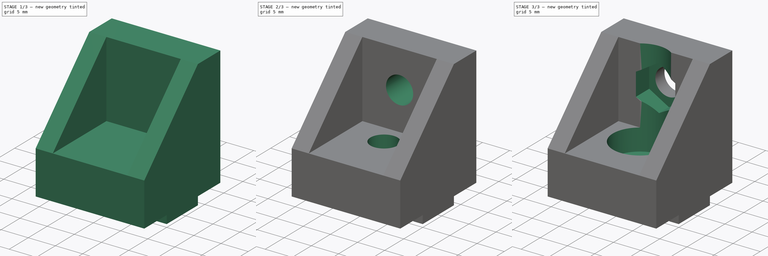
[diagram: build sequence overview — one tinted view per stage of 3, left to right]
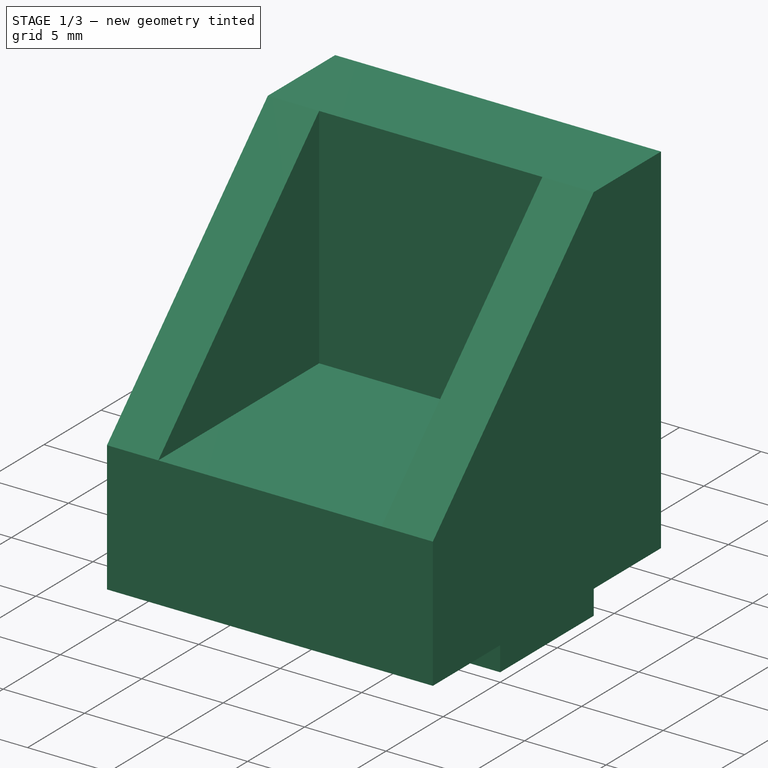
[diagram: stage 1 of 3 — iso view after this stage's code; geometry added in this stage tinted green]
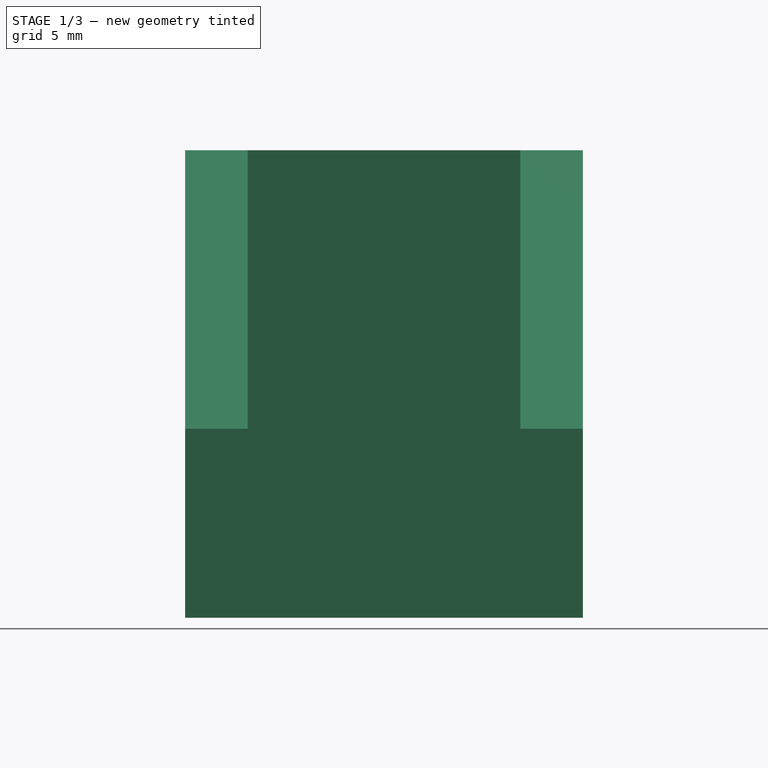
[diagram: stage 1 of 3 — front view after this stage's code; geometry added in this stage tinted green]
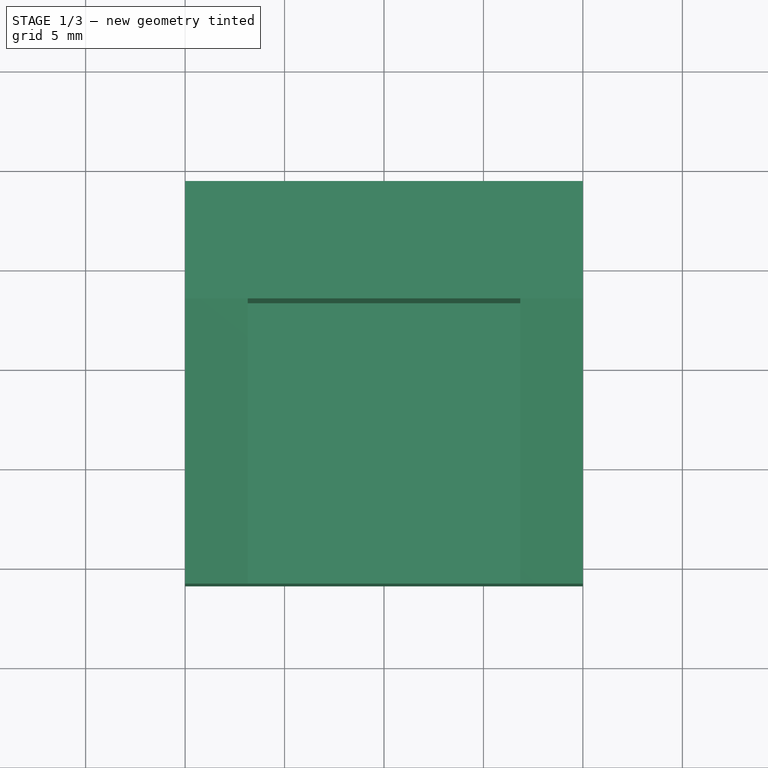
[diagram: stage 1 of 3 — top view after this stage's code; geometry added in this stage tinted green]
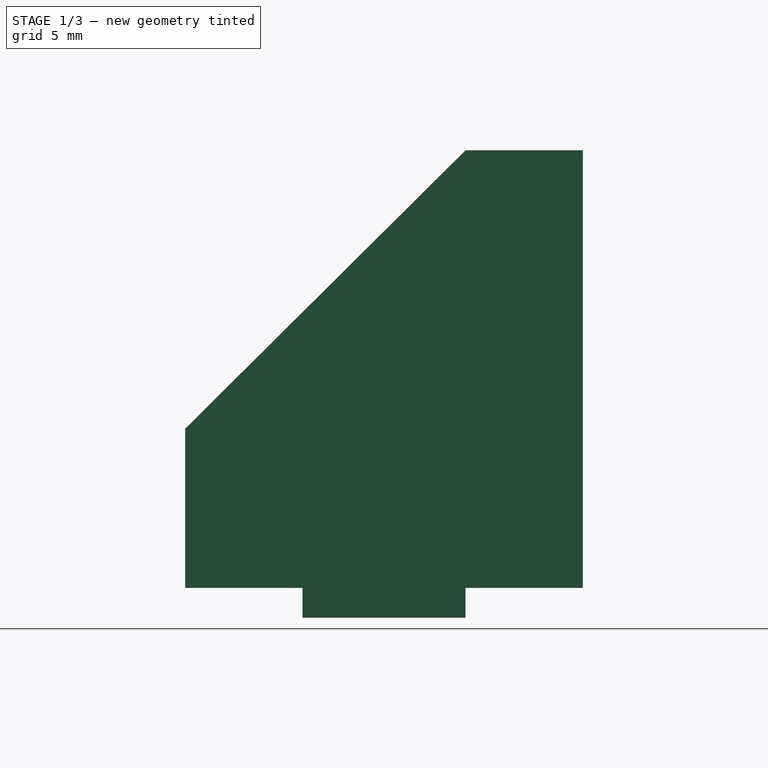
[diagram: stage 1 of 3 — right view after this stage's code; geometry added in this stage tinted green]
FCSTD DOCUMENT  (FreeCAD 0.17R13346 (Git))
Label: BL-Corelia_0_structure_nut_holder
License: All rights reserved
LicenseURL: http://en.wikipedia.org/wiki/All_rights_reserved
objects: Sketcher::SketchObject×7, PartDesign::Pocket×6, PartDesign::Pad×1, PartDesign::Body×1
note: 22 computed .brp shape members not serialized (recipe doc carries the construction recipe); baked Part::Feature solids carry a one-line shape summary decoded from their .brp

FEATURE [Sketcher::SketchObject] Sketch
  MapMode = 5
  Placement = pos=(0,0,0) rot=(0.57735,0.57735,0.57735;2.0944rad)
  Support = -> [YZ_Plane]
  sketch-geometry (9):
    g0: LineSegment StartX=0 StartY=-1.5 StartZ=0 EndX=8.2 EndY=-1.5 EndZ=0
    g1: LineSegment StartX=8.2 StartY=-1.5 StartZ=0 EndX=8.2 EndY=0 EndZ=0
    g2: LineSegment StartX=8.2 StartY=0 StartZ=0 EndX=14.1 EndY=0 EndZ=0
    g3: LineSegment StartX=14.1 StartY=0 StartZ=0 EndX=14.1 EndY=22 EndZ=0
    g4: LineSegment StartX=14.1 StartY=22 StartZ=0 EndX=8.2 EndY=22 EndZ=0
    g5: LineSegment StartX=-5.9 StartY=8 StartZ=0 EndX=-5.9 EndY=0 EndZ=0
    g6: LineSegment StartX=-5.9 StartY=0 StartZ=0 EndX=0 EndY=0 EndZ=0
    g7: LineSegment StartX=0 StartY=0 StartZ=0 EndX=0 EndY=-1.5 EndZ=0
    g8: LineSegment StartX=-5.9 StartY=8 StartZ=0 EndX=8.2 EndY=22 EndZ=0
  constraints (26):
    c: Coincident(g0,g1)
    c: Vertical(g1)
    c: Coincident(g1,g2)
    c: Horizontal(g2)
    c: Coincident(g2,g3)
    c: Vertical(g3)
    c: Coincident(g3,g4)
    c: Horizontal(g4)
    c: Vertical(g5)
    c: Coincident(g6,g5)
    c: Horizontal(g6)
    c: Coincident(g7,g6)
    c: Coincident(g7,g0)
    c: Vertical(g7)
    c: PointOnObject(g6,g2)
    c: Coincident(g8,g5)
    c: Coincident(g8,g4)
    c: Coincident(g6,g-1)
    c: DistanceX(g0,g0) = 8.2
    c: DistanceY(g7,g7) = 1.5
    c: Horizontal(g0)
    c: DistanceX(g6,g6) = 5.9
    c: Equal(g2,g6)
    c: DistanceY(g3,g3) = 22
    c: DistanceY(g5,g5) = 8
    c: Equal(g2,g4)
FEATURE [PartDesign::Pad] Pad
  Length = 20
  Length2 = 100
  Midplane = true
  Placement = pos=(0,0,0) rot=(0.57735,0.57735,0.57735;2.0944rad)
  Profile = -> Sketch
  Type = 0
FEATURE [Sketcher::SketchObject] Sketch001
  MapMode = 5
  Placement = pos=(0,0,22) rot=(0,0,-1;1.5708rad)
  Support = -> [Pad]
  sketch-geometry (4):
    g0: LineSegment StartX=-8.2 StartY=6.85 StartZ=0 EndX=5.9 EndY=6.85 EndZ=0
    g1: LineSegment StartX=5.9 StartY=6.85 StartZ=0 EndX=5.9 EndY=-6.85 EndZ=0
    g2: LineSegment StartX=5.9 StartY=-6.85 StartZ=0 EndX=-8.2 EndY=-6.85 EndZ=0
    g3: LineSegment StartX=-8.2 StartY=-6.85 StartZ=0 EndX=-8.2 EndY=6.85 EndZ=0
  constraints (12):
    c: Coincident(g0,g1)
    c: Coincident(g1,g2)
    c: Coincident(g2,g3)
    c: Coincident(g3,g0)
    c: Horizontal(g0)
    c: Horizontal(g2)
    c: Vertical(g1)
    c: Vertical(g3)
    c: DistanceY(g1,g1) = 13.7
    c: DistanceX(g0) = -8.2
    c: Symmetric(g0,g1,g-1)
    c: DistanceX(g0,g0) = 14.1
FEATURE [PartDesign::Pocket] Pocket
  BaseFeature = -> Pad
  Length = 14
  Length2 = 100
  Placement = pos=(0,0,0) rot=(0.57735,0.57735,0.57735;2.0944rad)
  Profile = -> Sketch001
  Type = 0
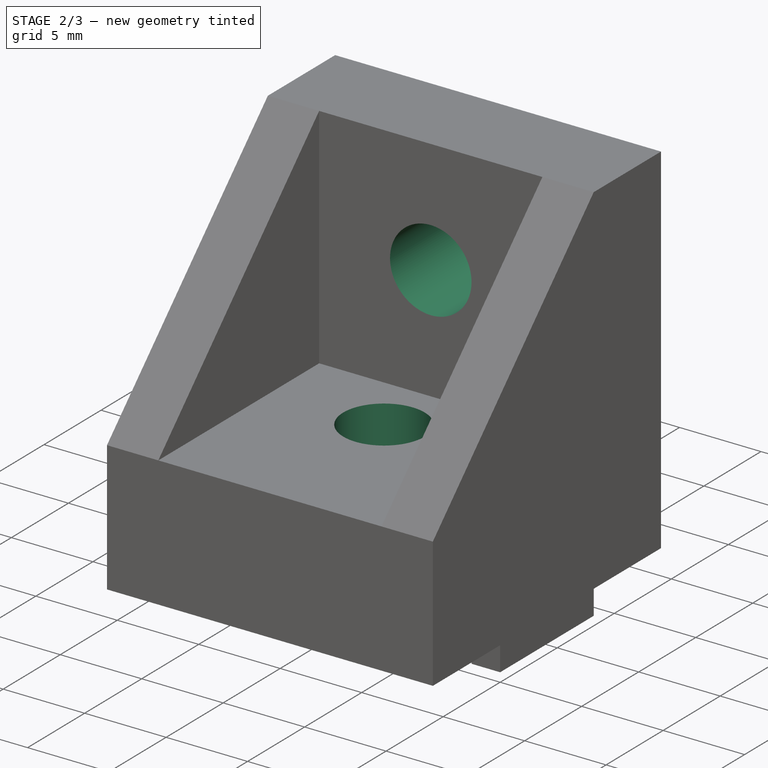
[diagram: stage 2 of 3 — iso view after this stage's code; geometry added in this stage tinted green]
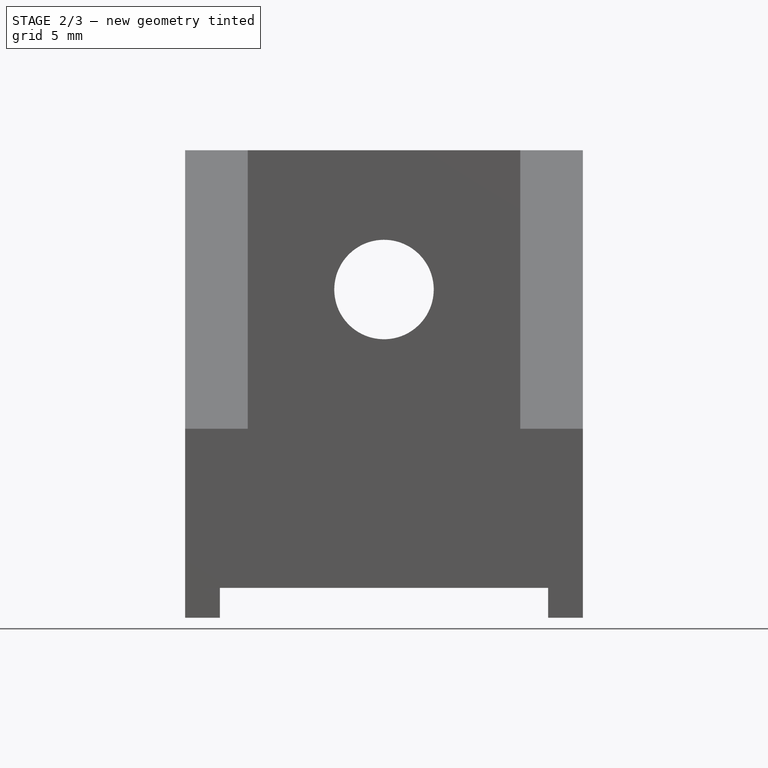
[diagram: stage 2 of 3 — front view after this stage's code; geometry added in this stage tinted green]
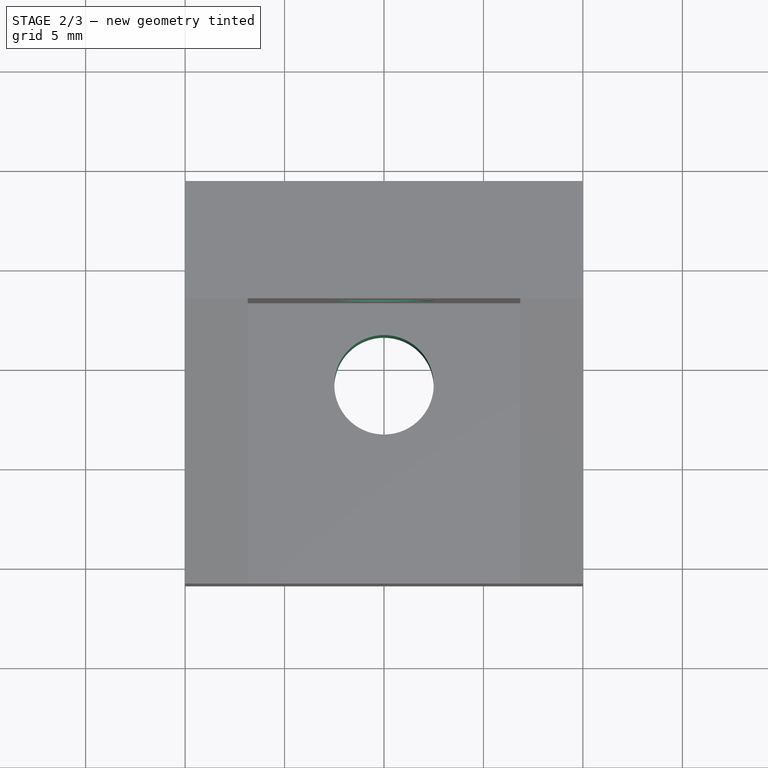
[diagram: stage 2 of 3 — top view after this stage's code; geometry added in this stage tinted green]
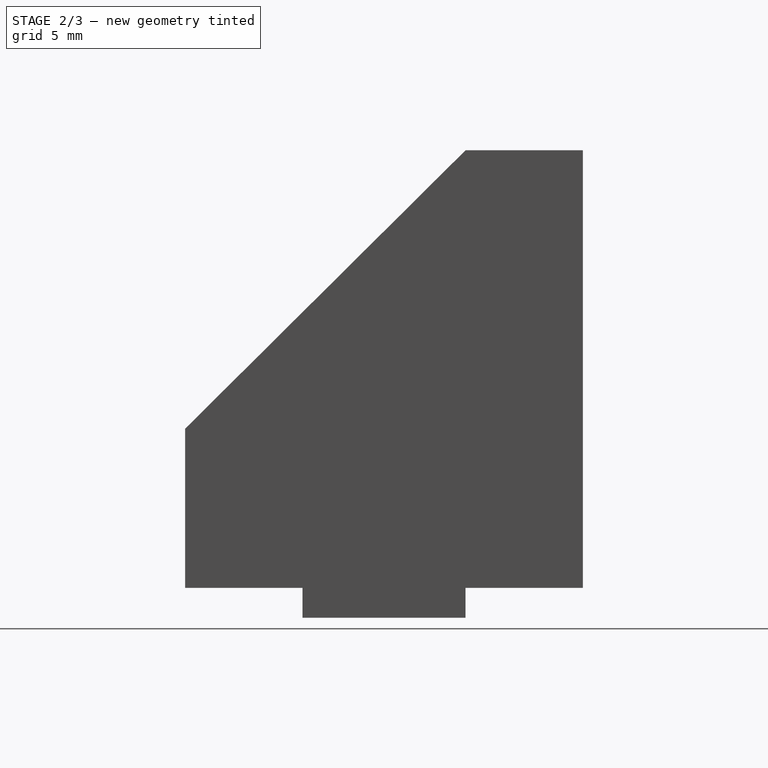
[diagram: stage 2 of 3 — right view after this stage's code; geometry added in this stage tinted green]
FEATURE [Sketcher::SketchObject] Sketch002
  MapMode = 5
  Placement = pos=(0,0,-1.5) rot=(0.707107,0.707107,0;3.14159rad)
  Support = -> [Pocket]
  sketch-geometry (1):
    g0: Circle CenterX=4.1 CenterY=0 CenterZ=0 NormalX=0 NormalY=0 NormalZ=1 AngleXU=0 Radius=2.5
  constraints (3):
    c: PointOnObject(g0,g-1)
    c: DistanceX(g0) = 4.1
    c: Radius(g0) = 2.5
FEATURE [PartDesign::Pocket] Pocket001
  BaseFeature = -> Pocket
  Length = 5
  Length2 = 100
  Placement = pos=(0,0,0) rot=(0.57735,0.57735,0.57735;2.0944rad)
  Profile = -> Sketch002
  Type = 1
FEATURE [Sketcher::SketchObject] Sketch003
  MapMode = 5
  Placement = pos=(0,0,-1.5) rot=(0.707107,0.707107,0;3.14159rad)
  Support = -> [Pocket001]
  sketch-geometry (4):
    g0: LineSegment StartX=0 StartY=8.25 StartZ=0 EndX=8.2 EndY=8.25 EndZ=0
    g1: LineSegment StartX=8.2 StartY=8.25 StartZ=0 EndX=8.2 EndY=-8.25 EndZ=0
    g2: LineSegment StartX=8.2 StartY=-8.25 StartZ=0 EndX=0 EndY=-8.25 EndZ=0
    g3: LineSegment StartX=0 StartY=-8.25 StartZ=0 EndX=0 EndY=8.25 EndZ=0
  constraints (12):
    c: Coincident(g0,g1)
    c: Coincident(g1,g2)
    c: Coincident(g2,g3)
    c: Coincident(g3,g0)
    c: Horizontal(g0)
    c: Horizontal(g2)
    c: Vertical(g1)
    c: Vertical(g3)
    c: PointOnObject(g0,g-2)
    c: Symmetric(g0,g2,g-1)
    c: DistanceX(g0,g0) = 8.2
    c: DistanceY(g3,g3) = 16.5
FEATURE [PartDesign::Pocket] Pocket002
  BaseFeature = -> Pocket001
  Length = 0
  Length2 = 100
  Placement = pos=(0,0,0) rot=(0.57735,0.57735,0.57735;2.0944rad)
  Profile = -> Sketch003
  Type = 3
  UpToFace = -> Pocket001 [Face13]
FEATURE [Sketcher::SketchObject] Sketch004
  MapMode = 5
  Placement = pos=(0,14.1,0) rot=(0.57735,0.57735,0.57735;4.18879rad)
  Support = -> [Pocket002]
  sketch-geometry (1):
    g0: Circle CenterX=15 CenterY=0 CenterZ=0 NormalX=0 NormalY=0 NormalZ=1 AngleXU=0 Radius=2.5
  constraints (3):
    c: PointOnObject(g0,g-1)
    c: DistanceX(g0) = 15
    c: Radius(g0) = 2.5
FEATURE [PartDesign::Pocket] Pocket003
  BaseFeature = -> Pocket002
  Length = 5
  Length2 = 100
  Placement = pos=(0,0,0) rot=(0.57735,0.57735,0.57735;2.0944rad)
  Profile = -> Sketch004
  Type = 1
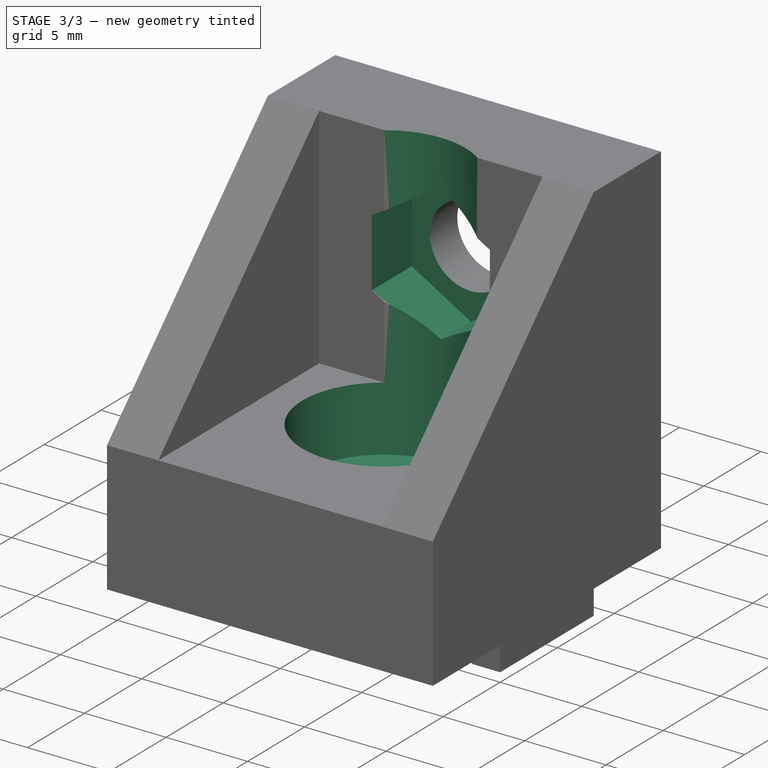
[diagram: stage 3 of 3 — iso view after this stage's code; geometry added in this stage tinted green]
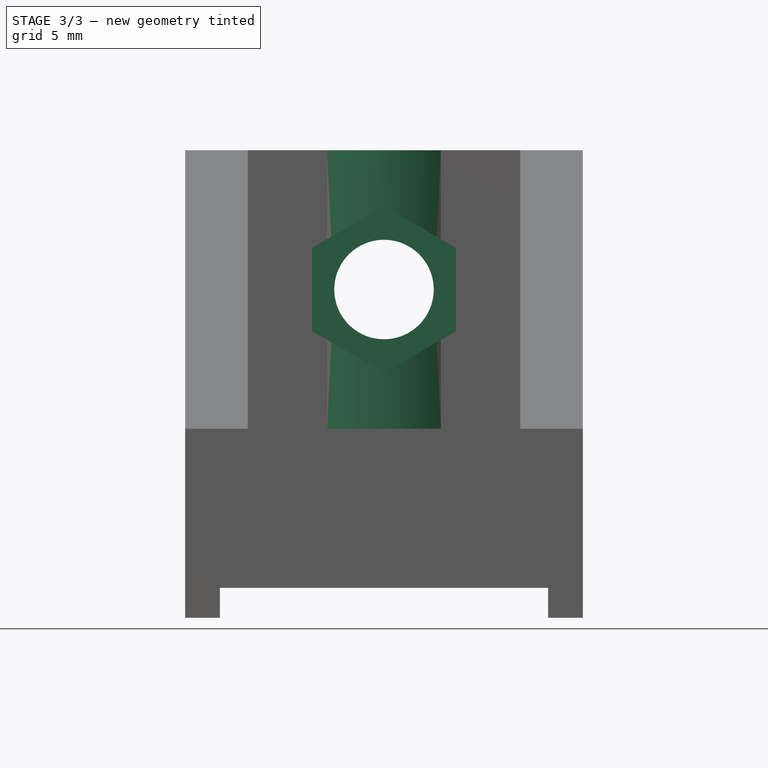
[diagram: stage 3 of 3 — front view after this stage's code; geometry added in this stage tinted green]
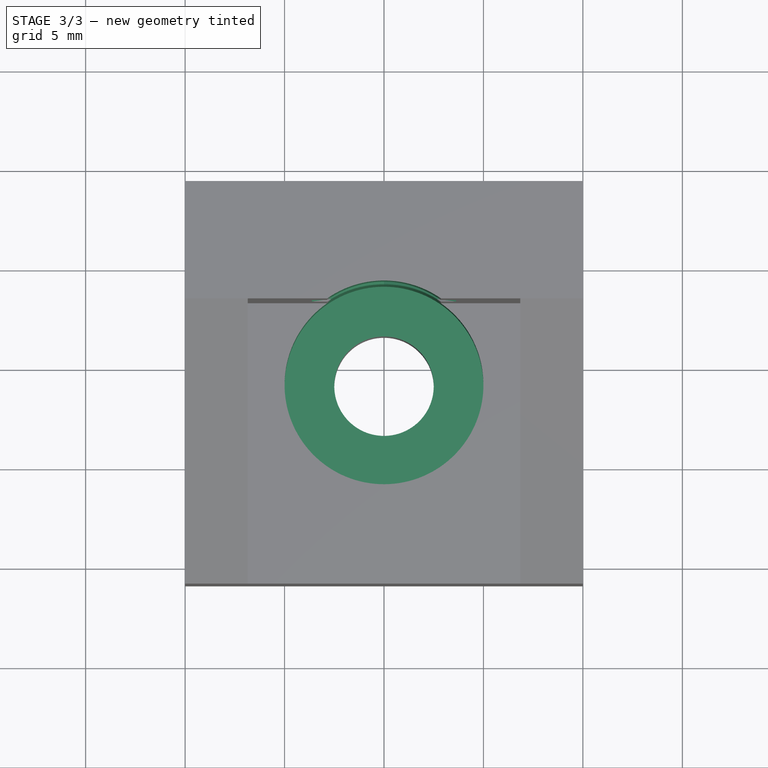
[diagram: stage 3 of 3 — top view after this stage's code; geometry added in this stage tinted green]
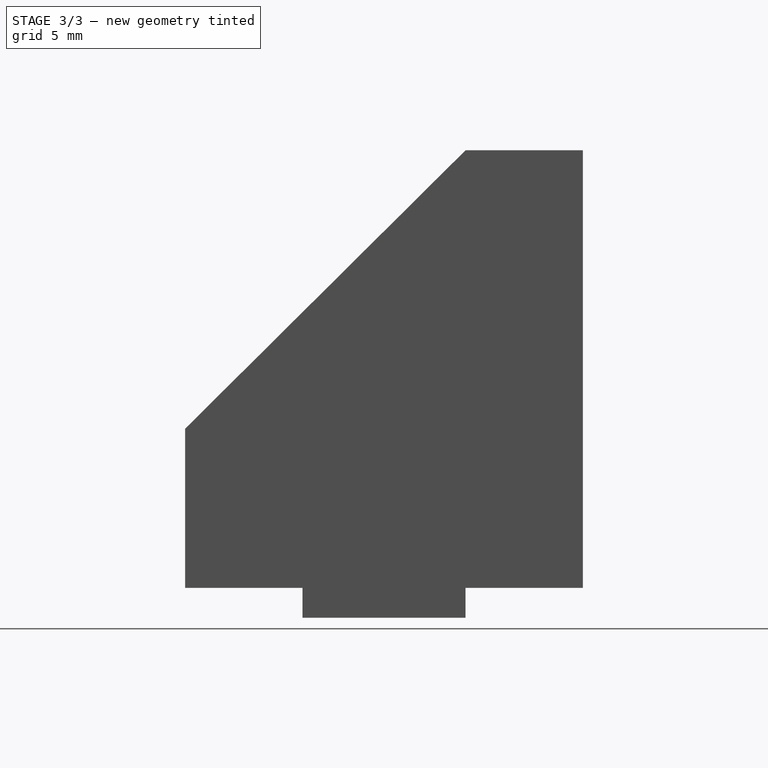
[diagram: stage 3 of 3 — right view after this stage's code; geometry added in this stage tinted green]
FEATURE [Sketcher::SketchObject] Sketch005
  MapMode = 5
  Placement = pos=(0,0,22) rot=(0,0,-1;1.5708rad)
  Support = -> [Pocket003]
  sketch-geometry (1):
    g0: Circle CenterX=-4.1 CenterY=0 CenterZ=0 NormalX=0 NormalY=0 NormalZ=1 AngleXU=0 Radius=5
  constraints (3):
    c: PointOnObject(g0,g-1)
    c: DistanceX(g0) = -4.1
    c: Radius(g0) = 5
FEATURE [PartDesign::Pocket] Pocket004
  BaseFeature = -> Pocket003
  Length = 18
  Length2 = 100
  Placement = pos=(0,0,0) rot=(0.57735,0.57735,0.57735;2.0944rad)
  Profile = -> Sketch005
  Type = 0
FEATURE [Sketcher::SketchObject] Sketch006
  MapMode = 5
  Placement = pos=(0,8.2,0) rot=(0.57735,0.57735,-0.57735;2.0944rad)
  Support = -> [Pocket004]
  sketch-geometry (7):
    g0: LineSegment StartX=-10.8142 StartY=0 StartZ=0 EndX=-12.9071 EndY=3.625 EndZ=0
    g1: LineSegment StartX=-12.9071 StartY=3.625 StartZ=0 EndX=-17.0929 EndY=3.625 EndZ=0
    g2: LineSegment StartX=-17.0929 StartY=3.625 StartZ=0 EndX=-19.1858 EndY=0 EndZ=0
    g3: LineSegment StartX=-19.1858 StartY=0 StartZ=0 EndX=-17.0929 EndY=-3.625 EndZ=0
    g4: LineSegment StartX=-17.0929 StartY=-3.625 StartZ=0 EndX=-12.9071 EndY=-3.625 EndZ=0
    g5: LineSegment StartX=-12.9071 StartY=-3.625 StartZ=0 EndX=-10.8142 EndY=0 EndZ=0
    g6: Circle [constr] CenterX=-15 CenterY=0 CenterZ=0 NormalX=0 NormalY=0 NormalZ=1 AngleXU=0 Radius=4.18579
  constraints (17):
    c: Coincident(g0,g1)
    c: Coincident(g1,g2)
    c: Coincident(g2,g3)
    c: Coincident(g3,g4)
    c: Coincident(g4,g5)
    c: Coincident(g5,g0)
    c: Equal(g0, g1-g5) x5
    c: PointOnObject(g0,g6)
    c: PointOnObject(g1,g6)
    c: PointOnObject(g2,g6)
    c: PointOnObject(g3,g6)
    c: PointOnObject(g4,g6)
    c: PointOnObject(g5,g6)
    c: PointOnObject(g6,g-1)
    c: PointOnObject(g5,g-1)
    c: DistanceY(g3,g1) = 7.25
    c: DistanceX(g6) = -15
FEATURE [PartDesign::Pocket] Pocket005
  BaseFeature = -> Pocket004
  Length = 3.5
  Length2 = 100
  Placement = pos=(0,0,0) rot=(0.57735,0.57735,0.57735;2.0944rad)
  Profile = -> Sketch006
  Type = 0
FEATURE [PartDesign::Body] Body
  Group = -> [Sketch,Pad,Sketch001,Pocket,Sketch002,Pocket001,Sketch003,Pocket002,Sketch004,Pocket003,Sketch005,Pocket004,Sketch006,Pocket005]
  Origin = -> Origin
  Tip = -> Pocket005
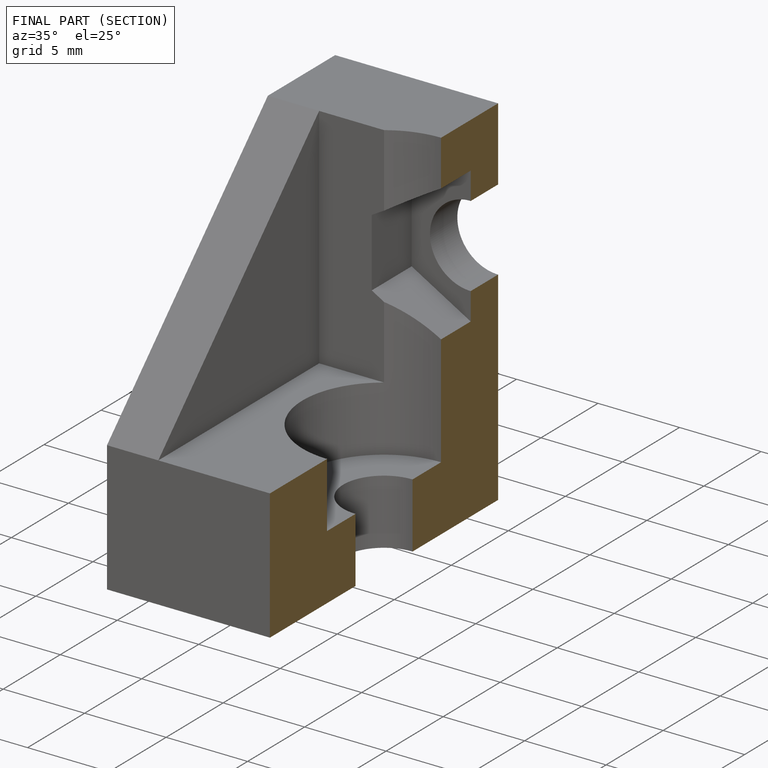
[diagram: finished part — half-section view (interior)]
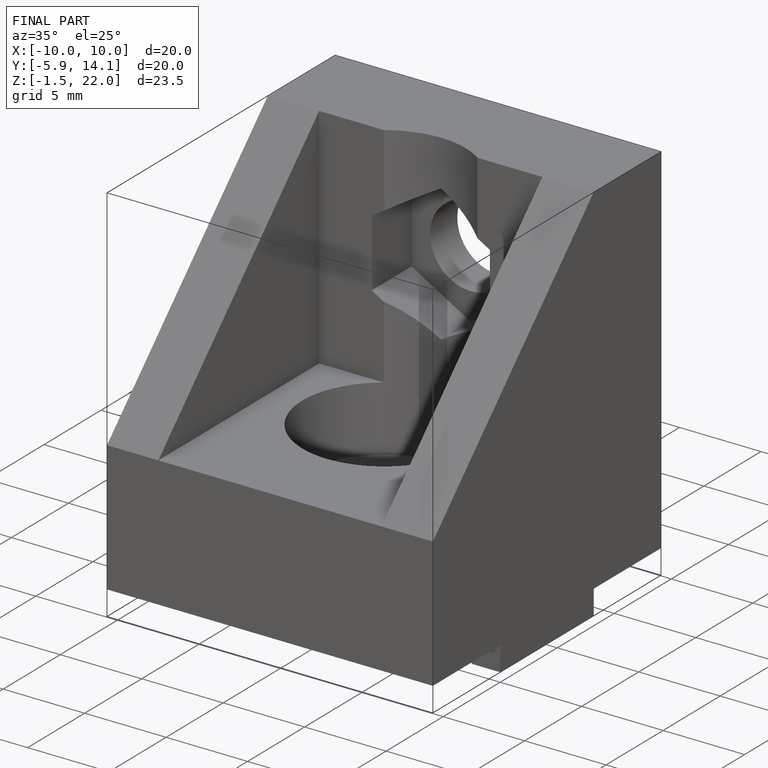
[diagram: finished part — iso view with bounding-box wireframe]
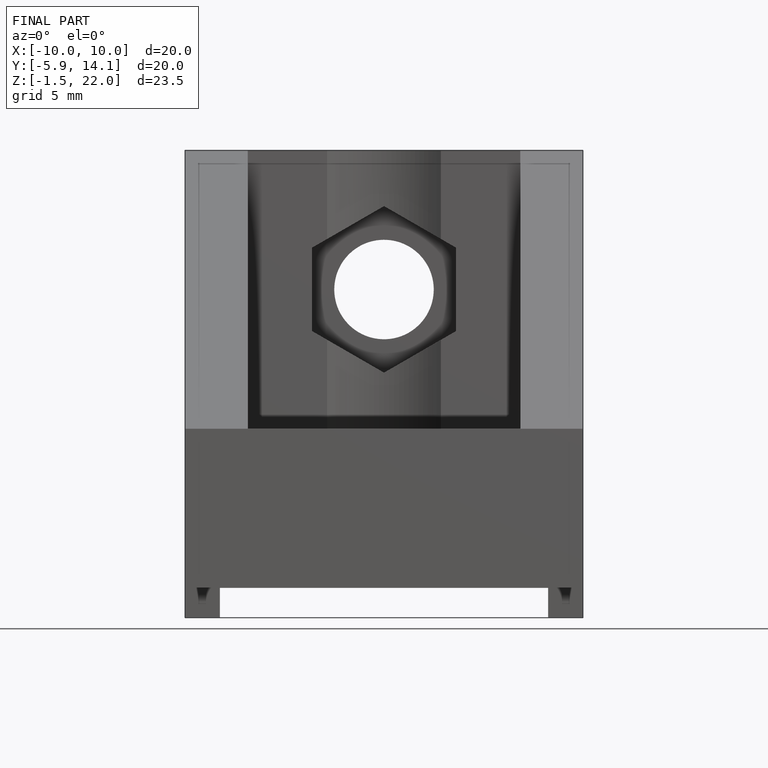
[diagram: finished part — front view with bounding-box wireframe]
